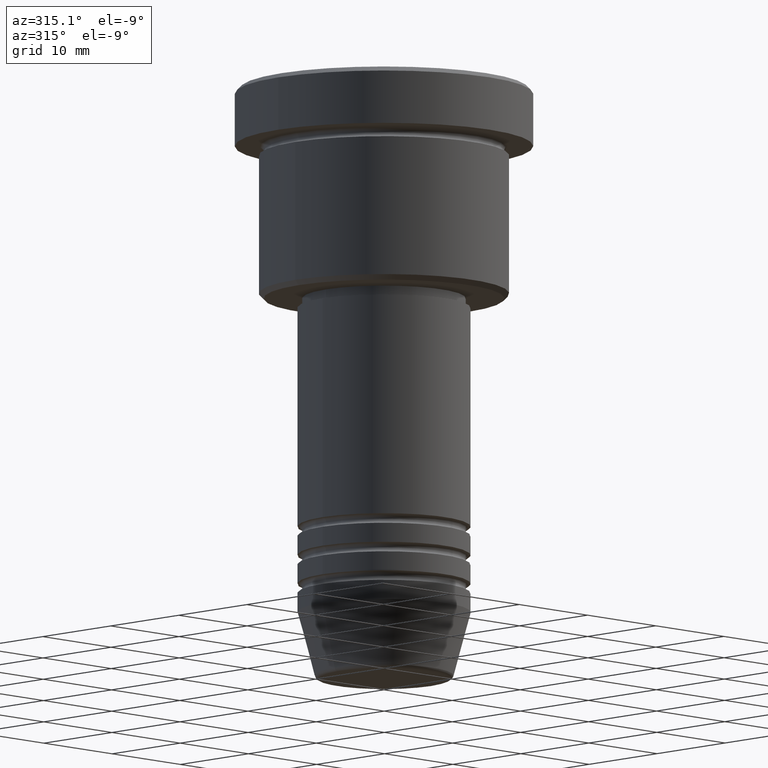
[diagram: clean part render]
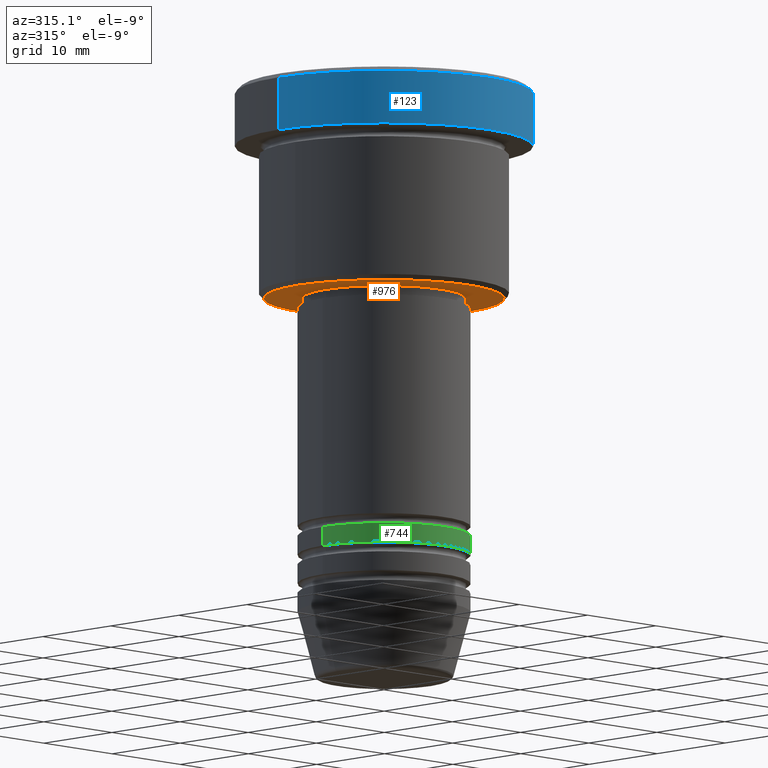
[diagram: same view with three faces highlighted in distinct colors, each labeled with its STEP entity id]
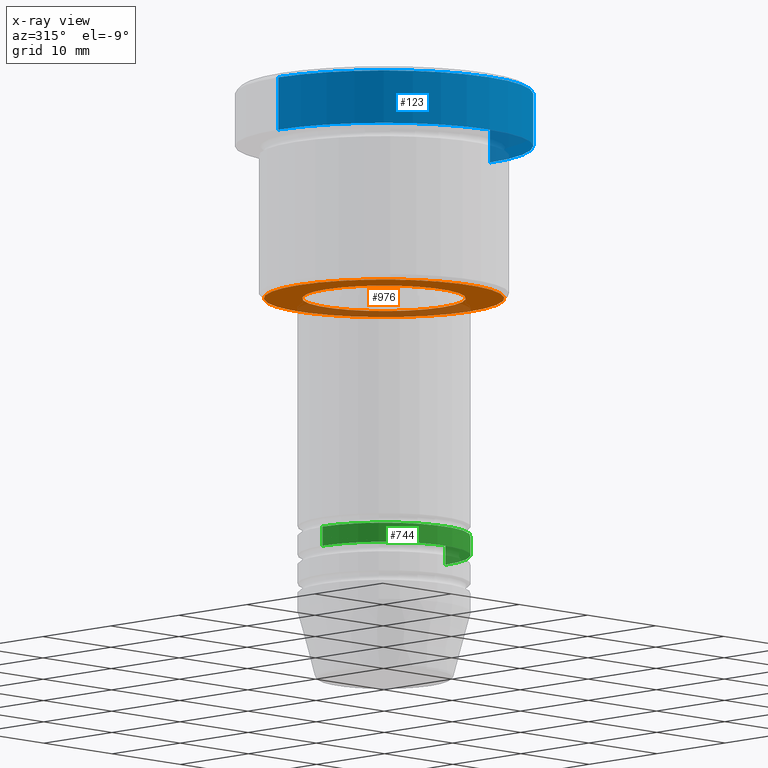
[diagram: x-ray of the same camera — body ghosted, the three highlighted faces saturated]
A machine part, auxiliary view with three faces highlighted in distinct colors.
The next image is the same camera in x-ray (body ghosted, the three faces saturated) — at least one of them is partly hidden behind the body in this view.
Their STEP definitions:

[orange] entity #976 — the highlighted planar face has unit normal (0, 0, -1).
#4 = FACE_BOUND ( 'NONE', #836, .T. ) ;
#6 = DIRECTION ( 'NONE',  ( 1.000000000000000000, 0.000000000000000000, 0.000000000000000000 ) ) ;
#22 = EDGE_CURVE ( 'NONE', #49, #74, #997, .T. ) ;
#38 = ORIENTED_EDGE ( 'NONE', *, *, #355, .T. ) ;
#49 = VERTEX_POINT ( 'NONE', #619 ) ;
#66 = CARTESIAN_POINT ( 'NONE',  ( -8.499999999999998224, 1.040949779275249943E-15, -22.00000000000000000 ) ) ;
#74 = VERTEX_POINT ( 'NONE', #66 ) ;
#86 = DIRECTION ( 'NONE',  ( 1.000000000000000000, 0.000000000000000000, 0.000000000000000000 ) ) ;
#93 = EDGE_CURVE ( 'NONE', #149, #162, #1142, .T. ) ;
#114 = DIRECTION ( 'NONE',  ( -1.000000000000000000, 0.000000000000000000, 0.000000000000000000 ) ) ;
#117 = CIRCLE ( 'NONE', #889, 8.499999999999998224 ) ;
#120 = CARTESIAN_POINT ( 'NONE',  ( -12.49999999999998401, 1.561424668912874125E-15, -22.00000000000000000 ) ) ;
#130 = EDGE_CURVE ( 'NONE', #74, #49, #117, .T. ) ;
#149 = VERTEX_POINT ( 'NONE', #120 ) ;
#162 = VERTEX_POINT ( 'NONE', #200 ) ;
#200 = CARTESIAN_POINT ( 'NONE',  ( 12.49999999999998401, 0.000000000000000000, -22.00000000000000000 ) ) ;
#344 = CARTESIAN_POINT ( 'NONE',  ( 0.000000000000000000, 0.000000000000000000, -22.00000000000000000 ) ) ;
#355 = EDGE_CURVE ( 'NONE', #162, #149, #1162, .T. ) ;
#373 = DIRECTION ( 'NONE',  ( -0.000000000000000000, -0.000000000000000000, 1.000000000000000000 ) ) ;
#378 = CARTESIAN_POINT ( 'NONE',  ( 0.000000000000000000, 0.000000000000000000, -22.00000000000000000 ) ) ;
#450 = ORIENTED_EDGE ( 'NONE', *, *, #22, .T. ) ;
#474 = EDGE_LOOP ( 'NONE', ( #38, #641 ) ) ;
#554 = AXIS2_PLACEMENT_3D ( 'NONE', #344, #828, #86 ) ;
#619 = CARTESIAN_POINT ( 'NONE',  ( 8.499999999999998224, 0.000000000000000000, -22.00000000000000000 ) ) ;
#641 = ORIENTED_EDGE ( 'NONE', *, *, #93, .T. ) ;
#683 = DIRECTION ( 'NONE',  ( 0.000000000000000000, 0.000000000000000000, -1.000000000000000000 ) ) ;
#690 = CARTESIAN_POINT ( 'NONE',  ( 0.000000000000000000, 0.000000000000000000, -22.00000000000000000 ) ) ;
#745 = PLANE ( 'NONE',  #1104 ) ;
#761 = DIRECTION ( 'NONE',  ( 0.000000000000000000, 0.000000000000000000, -1.000000000000000000 ) ) ;
#767 = AXIS2_PLACEMENT_3D ( 'NONE', #378, #761, #114 ) ;
#790 = AXIS2_PLACEMENT_3D ( 'NONE', #690, #683, #1053 ) ;
#809 = DIRECTION ( 'NONE',  ( 0.000000000000000000, 0.000000000000000000, -1.000000000000000000 ) ) ;
#828 = DIRECTION ( 'NONE',  ( -0.000000000000000000, -0.000000000000000000, 1.000000000000000000 ) ) ;
#836 = EDGE_LOOP ( 'NONE', ( #450, #975 ) ) ;
#837 = FACE_OUTER_BOUND ( 'NONE', #474, .T. ) ;
#850 = CARTESIAN_POINT ( 'NONE',  ( 0.000000000000000000, 0.000000000000000000, -22.00000000000000000 ) ) ;
#889 = AXIS2_PLACEMENT_3D ( 'NONE', #850, #373, #6 ) ;
#909 = DIRECTION ( 'NONE',  ( -1.000000000000000000, 0.000000000000000000, -0.000000000000000000 ) ) ;
#975 = ORIENTED_EDGE ( 'NONE', *, *, #130, .T. ) ;
#976 = ADVANCED_FACE ( 'NONE', ( #837, #4 ), #745, .T. ) ;
#997 = CIRCLE ( 'NONE', #554, 8.499999999999998224 ) ;
#1053 = DIRECTION ( 'NONE',  ( -1.000000000000000000, 0.000000000000000000, 0.000000000000000000 ) ) ;
#1098 = CARTESIAN_POINT ( 'NONE',  ( 0.000000000000000000, 13.00000000000000000, -22.00000000000000000 ) ) ;
#1104 = AXIS2_PLACEMENT_3D ( 'NONE', #1098, #809, #909 ) ;
#1142 = CIRCLE ( 'NONE', #767, 12.49999999999998401 ) ;
#1162 = CIRCLE ( 'NONE', #790, 12.49999999999998401 ) ;

[blue] entity #123 — the highlighted cylindrical surface (partial cylindrical patch) has radius 15.5 mm, axis along (-0, -0, 1).
#28 = EDGE_CURVE ( 'NONE', #582, #714, #736, .T. ) ;
#36 = DIRECTION ( 'NONE',  ( 1.000000000000000000, 0.000000000000000000, 0.000000000000000000 ) ) ;
#55 = AXIS2_PLACEMENT_3D ( 'NONE', #1029, #653, #473 ) ;
#99 = AXIS2_PLACEMENT_3D ( 'NONE', #218, #768, #36 ) ;
#123 = ADVANCED_FACE ( 'NONE', ( #1007 ), #747, .T. ) ;
#167 = CARTESIAN_POINT ( 'NONE',  ( 15.50000000000000000, 0.000000000000000000, 0.000000000000000000 ) ) ;
#218 = CARTESIAN_POINT ( 'NONE',  ( 0.000000000000000000, 0.000000000000000000, -0.5000000000000196509 ) ) ;
#266 = EDGE_CURVE ( 'NONE', #348, #714, #512, .T. ) ;
#319 = DIRECTION ( 'NONE',  ( -0.000000000000000000, -0.000000000000000000, 1.000000000000000000 ) ) ;
#332 = VERTEX_POINT ( 'NONE', #484 ) ;
#348 = VERTEX_POINT ( 'NONE', #876 ) ;
#356 = DIRECTION ( 'NONE',  ( -0.000000000000000000, -0.000000000000000000, 1.000000000000000000 ) ) ;
#358 = LINE ( 'NONE', #167, #888 ) ;
#377 = CIRCLE ( 'NONE', #1085, 15.50000000000000000 ) ;
#473 = DIRECTION ( 'NONE',  ( 1.000000000000000000, 0.000000000000000000, 0.000000000000000000 ) ) ;
#484 = CARTESIAN_POINT ( 'NONE',  ( 15.50000000000000000, 0.000000000000000000, -5.999999999999995559 ) ) ;
#512 = CIRCLE ( 'NONE', #99, 15.50000000000000000 ) ;
#582 = VERTEX_POINT ( 'NONE', #1028 ) ;
#653 = DIRECTION ( 'NONE',  ( -0.000000000000000000, -0.000000000000000000, 1.000000000000000000 ) ) ;
#695 = DIRECTION ( 'NONE',  ( 1.000000000000000000, 0.000000000000000000, 0.000000000000000000 ) ) ;
#697 = EDGE_LOOP ( 'NONE', ( #858, #844, #740, #920 ) ) ;
#714 = VERTEX_POINT ( 'NONE', #974 ) ;
#736 = LINE ( 'NONE', #1171, #1159 ) ;
#740 = ORIENTED_EDGE ( 'NONE', *, *, #910, .T. ) ;
#747 = CYLINDRICAL_SURFACE ( 'NONE', #55, 15.50000000000000000 ) ;
#768 = DIRECTION ( 'NONE',  ( 0.000000000000000000, 0.000000000000000000, -1.000000000000000000 ) ) ;
#822 = EDGE_CURVE ( 'NONE', #582, #332, #377, .T. ) ;
#844 = ORIENTED_EDGE ( 'NONE', *, *, #822, .T. ) ;
#858 = ORIENTED_EDGE ( 'NONE', *, *, #28, .F. ) ;
#876 = CARTESIAN_POINT ( 'NONE',  ( 15.50000000000000000, 0.000000000000000000, -0.5000000000000196509 ) ) ;
#888 = VECTOR ( 'NONE', #1181, 1000.000000000000000 ) ;
#910 = EDGE_CURVE ( 'NONE', #332, #348, #358, .T. ) ;
#920 = ORIENTED_EDGE ( 'NONE', *, *, #266, .T. ) ;
#974 = CARTESIAN_POINT ( 'NONE',  ( -15.50000000000000000, 1.898202538678397557E-15, -0.5000000000000196509 ) ) ;
#1007 = FACE_OUTER_BOUND ( 'NONE', #697, .T. ) ;
#1028 = CARTESIAN_POINT ( 'NONE',  ( -15.50000000000000000, 1.898202538678397557E-15, -5.999999999999995559 ) ) ;
#1029 = CARTESIAN_POINT ( 'NONE',  ( 0.000000000000000000, 0.000000000000000000, 0.000000000000000000 ) ) ;
#1085 = AXIS2_PLACEMENT_3D ( 'NONE', #1139, #319, #695 ) ;
#1139 = CARTESIAN_POINT ( 'NONE',  ( 0.000000000000000000, 0.000000000000000000, -5.999999999999995559 ) ) ;
#1159 = VECTOR ( 'NONE', #356, 1000.000000000000000 ) ;
#1171 = CARTESIAN_POINT ( 'NONE',  ( -15.50000000000000000, 1.898202538678397557E-15, 0.000000000000000000 ) ) ;
#1181 = DIRECTION ( 'NONE',  ( -0.000000000000000000, -0.000000000000000000, 1.000000000000000000 ) ) ;

[green] entity #744 — the highlighted cylindrical surface (partial cylindrical patch) has radius 9 mm, axis along (-0, -0, 1).
#83 = EDGE_CURVE ( 'NONE', #1147, #187, #475, .T. ) ;
#89 = EDGE_CURVE ( 'NONE', #1147, #904, #615, .T. ) ;
#161 = DIRECTION ( 'NONE',  ( 1.000000000000000000, 0.000000000000000000, 0.000000000000000000 ) ) ;
#163 = DIRECTION ( 'NONE',  ( 1.000000000000000000, 0.000000000000000000, 0.000000000000000000 ) ) ;
#187 = VERTEX_POINT ( 'NONE', #1109 ) ;
#323 = ORIENTED_EDGE ( 'NONE', *, *, #499, .T. ) ;
#325 = DIRECTION ( 'NONE',  ( 1.000000000000000000, 0.000000000000000000, 0.000000000000000000 ) ) ;
#336 = CARTESIAN_POINT ( 'NONE',  ( 0.000000000000000000, 0.000000000000000000, -46.99999999999998579 ) ) ;
#345 = EDGE_LOOP ( 'NONE', ( #587, #602, #323, #660 ) ) ;
#427 = DIRECTION ( 'NONE',  ( -0.000000000000000000, -0.000000000000000000, 1.000000000000000000 ) ) ;
#430 = CARTESIAN_POINT ( 'NONE',  ( 0.000000000000000000, 0.000000000000000000, -48.99999999999997868 ) ) ;
#455 = AXIS2_PLACEMENT_3D ( 'NONE', #430, #804, #161 ) ;
#470 = CARTESIAN_POINT ( 'NONE',  ( 9.000000000000000000, 0.000000000000000000, -46.99999999999998579 ) ) ;
#475 = CIRCLE ( 'NONE', #455, 9.000000000000000000 ) ;
#499 = EDGE_CURVE ( 'NONE', #187, #1006, #647, .T. ) ;
#573 = VECTOR ( 'NONE', #1090, 1000.000000000000000 ) ;
#587 = ORIENTED_EDGE ( 'NONE', *, *, #89, .F. ) ;
#602 = ORIENTED_EDGE ( 'NONE', *, *, #83, .T. ) ;
#608 = VECTOR ( 'NONE', #990, 1000.000000000000000 ) ;
#615 = LINE ( 'NONE', #1160, #608 ) ;
#647 = LINE ( 'NONE', #1096, #573 ) ;
#660 = ORIENTED_EDGE ( 'NONE', *, *, #737, .F. ) ;
#713 = CIRCLE ( 'NONE', #1037, 9.000000000000000000 ) ;
#737 = EDGE_CURVE ( 'NONE', #904, #1006, #713, .T. ) ;
#744 = ADVANCED_FACE ( 'NONE', ( #1064 ), #875, .T. ) ;
#804 = DIRECTION ( 'NONE',  ( -0.000000000000000000, -0.000000000000000000, 1.000000000000000000 ) ) ;
#818 = CARTESIAN_POINT ( 'NONE',  ( -9.000000000000000000, 1.102182119232617714E-15, -46.99999999999998579 ) ) ;
#834 = AXIS2_PLACEMENT_3D ( 'NONE', #970, #984, #325 ) ;
#875 = CYLINDRICAL_SURFACE ( 'NONE', #834, 9.000000000000000000 ) ;
#904 = VERTEX_POINT ( 'NONE', #818 ) ;
#970 = CARTESIAN_POINT ( 'NONE',  ( 0.000000000000000000, 0.000000000000000000, 0.000000000000000000 ) ) ;
#984 = DIRECTION ( 'NONE',  ( -0.000000000000000000, -0.000000000000000000, 1.000000000000000000 ) ) ;
#990 = DIRECTION ( 'NONE',  ( -0.000000000000000000, -0.000000000000000000, 1.000000000000000000 ) ) ;
#1006 = VERTEX_POINT ( 'NONE', #470 ) ;
#1037 = AXIS2_PLACEMENT_3D ( 'NONE', #336, #427, #163 ) ;
#1064 = FACE_OUTER_BOUND ( 'NONE', #345, .T. ) ;
#1090 = DIRECTION ( 'NONE',  ( -0.000000000000000000, -0.000000000000000000, 1.000000000000000000 ) ) ;
#1096 = CARTESIAN_POINT ( 'NONE',  ( 9.000000000000000000, 0.000000000000000000, 0.000000000000000000 ) ) ;
#1109 = CARTESIAN_POINT ( 'NONE',  ( 9.000000000000000000, 0.000000000000000000, -48.99999999999997868 ) ) ;
#1132 = CARTESIAN_POINT ( 'NONE',  ( -9.000000000000000000, 1.102182119232617714E-15, -48.99999999999997868 ) ) ;
#1147 = VERTEX_POINT ( 'NONE', #1132 ) ;
#1160 = CARTESIAN_POINT ( 'NONE',  ( -9.000000000000000000, 1.102182119232617714E-15, 0.000000000000000000 ) ) ;